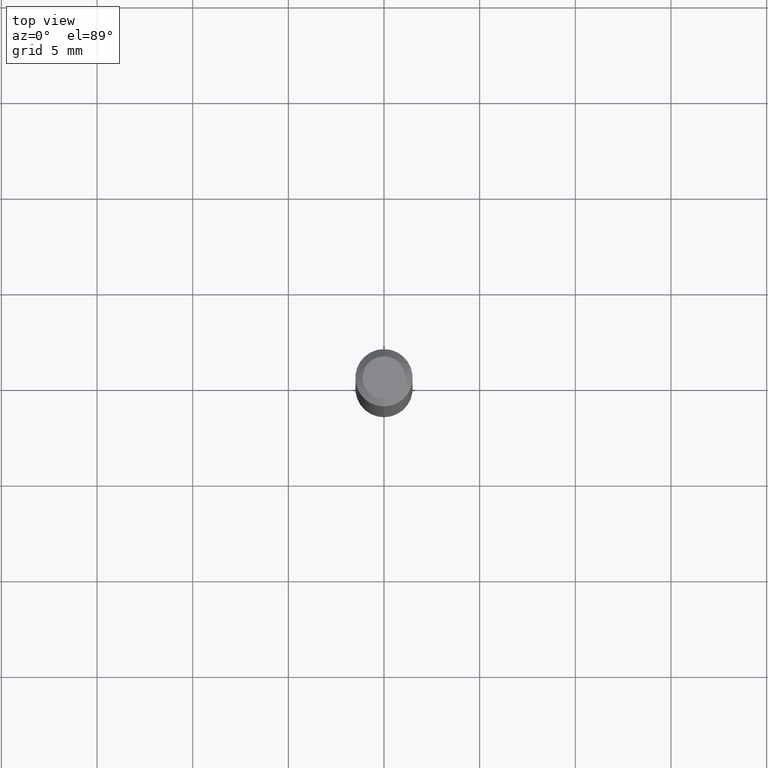
[diagram: clean part render]
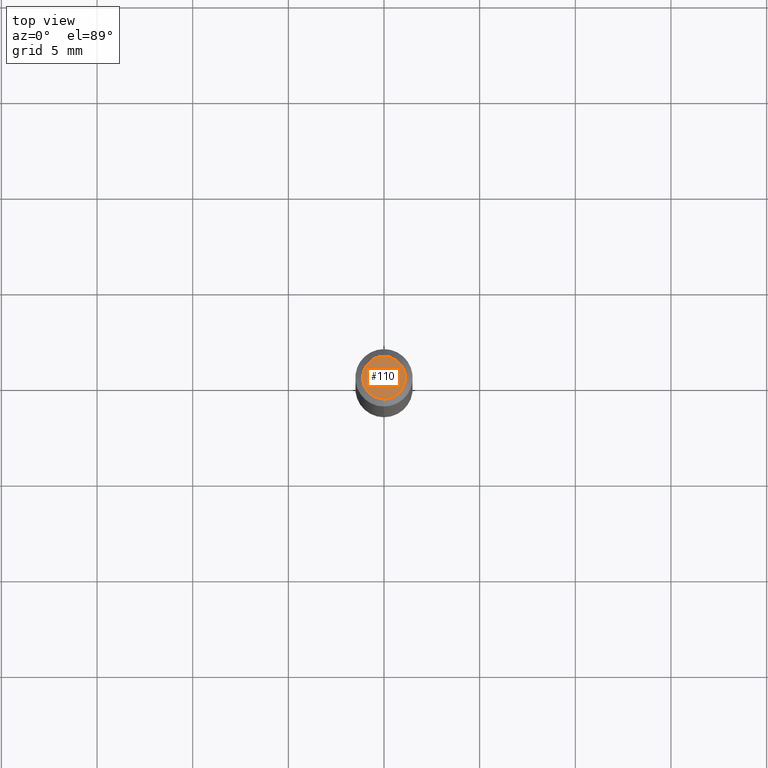
[diagram: same view with one face highlighted and labeled with its STEP entity id]
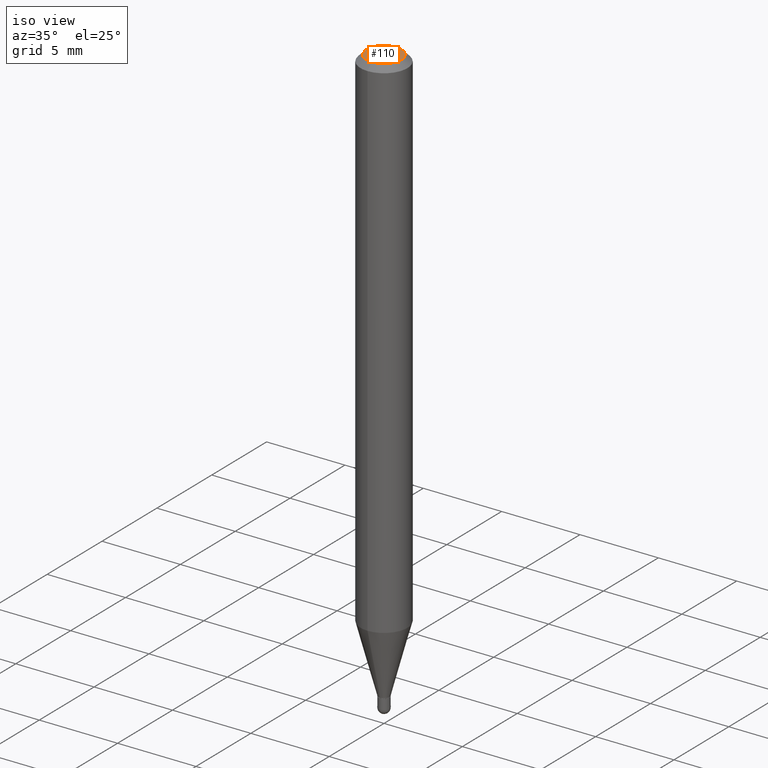
[diagram: same view with one face highlighted and labeled with its STEP entity id]
A machine part, top view. The second image highlights one B-rep face of the part: STEP entity #110.
A second angle (iso view) of the same face is appended — the face is thin or edge-on in the first view.
In plain terms, the highlighted planar face has unit normal (0, -0, -1).
Its self-contained STEP definition (entity closure, byte-faithful):
#2 = CARTESIAN_POINT ( 'NONE',  ( 3.599717260347271507E-16, 0.04404999999999999888, -2.343019103179918348E-16 ) ) ;
#14 = DIRECTION ( 'NONE',  ( 2.445498150151118420E-29, -3.491439316613704434E-15, -1.000000000000000000 ) ) ;
#30 = DIRECTION ( 'NONE',  ( -2.445498150151118420E-29, 3.491439316613704829E-15, 1.000000000000000000 ) ) ;
#31 = DIRECTION ( 'NONE',  ( -2.445498150151118420E-29, 3.491439316613704829E-15, 1.000000000000000000 ) ) ;
#35 = ORIENTED_EDGE ( 'NONE', *, *, #278, .T. ) ;
#42 = AXIS2_PLACEMENT_3D ( 'NONE', #500, #30, #220 ) ;
#48 = CARTESIAN_POINT ( 'NONE',  ( 3.075995059520799729E-16, 0.04404999999999999888, -1.940499061074127601E-16 ) ) ;
#82 = EDGE_LOOP ( 'NONE', ( #460, #35 ) ) ;
#110 = ADVANCED_FACE ( 'NONE', ( #448 ), #409, .F. ) ;
#184 = EDGE_CURVE ( 'NONE', #424, #346, #250, .T. ) ;
#220 = DIRECTION ( 'NONE',  ( -6.982962677686265133E-15, -1.000000000000000000, 3.491439316613704829E-15 ) ) ;
#250 = CIRCLE ( 'NONE', #42, 0.04404999999999999888 ) ;
#278 = EDGE_CURVE ( 'NONE', #346, #424, #331, .T. ) ;
#295 = DIRECTION ( 'NONE',  ( 6.982962677686265922E-15, 1.000000000000000000, -3.491439316613704434E-15 ) ) ;
#331 = CIRCLE ( 'NONE', #348, 0.04404999999999999888 ) ;
#346 = VERTEX_POINT ( 'NONE', #511 ) ;
#348 = AXIS2_PLACEMENT_3D ( 'NONE', #437, #31, #466 ) ;
#409 = PLANE ( 'NONE',  #497 ) ;
#424 = VERTEX_POINT ( 'NONE', #2 ) ;
#437 = CARTESIAN_POINT ( 'NONE',  ( 1.968724036736922957E-45, -2.810748601466323041E-31, -8.050400842115813712E-17 ) ) ;
#448 = FACE_OUTER_BOUND ( 'NONE', #82, .T. ) ;
#460 = ORIENTED_EDGE ( 'NONE', *, *, #184, .T. ) ;
#466 = DIRECTION ( 'NONE',  ( -6.982962677686265133E-15, -1.000000000000000000, 3.491439316613704829E-15 ) ) ;
#497 = AXIS2_PLACEMENT_3D ( 'NONE', #48, #14, #295 ) ;
#500 = CARTESIAN_POINT ( 'NONE',  ( 1.968724036736922957E-45, -2.810748601466323041E-31, -8.050400842115813712E-17 ) ) ;
#511 = CARTESIAN_POINT ( 'NONE',  ( -3.536586717851222218E-16, -0.04404999999999999888, 7.329389347567552363E-17 ) ) ;